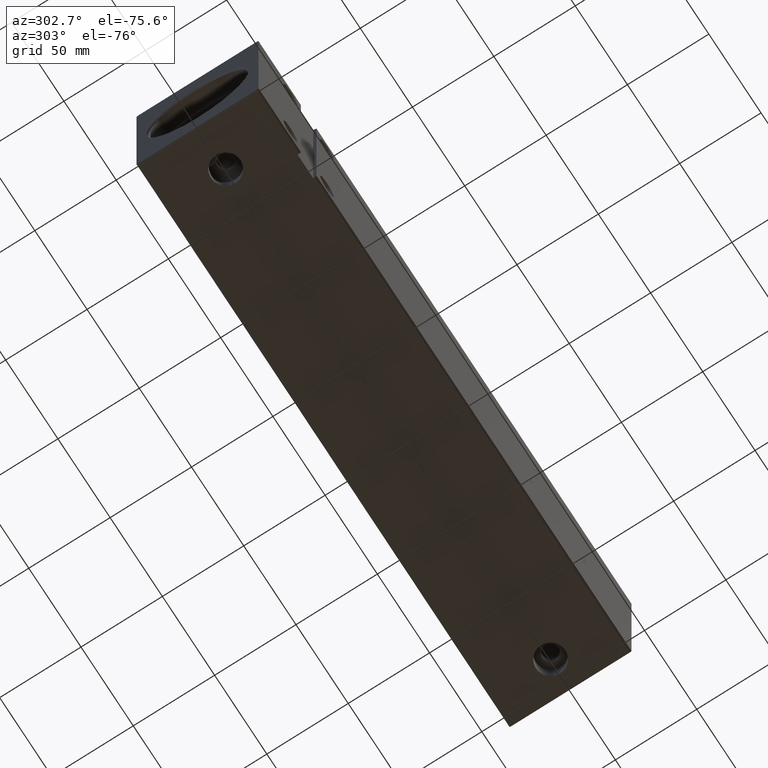
[diagram: clean part render]
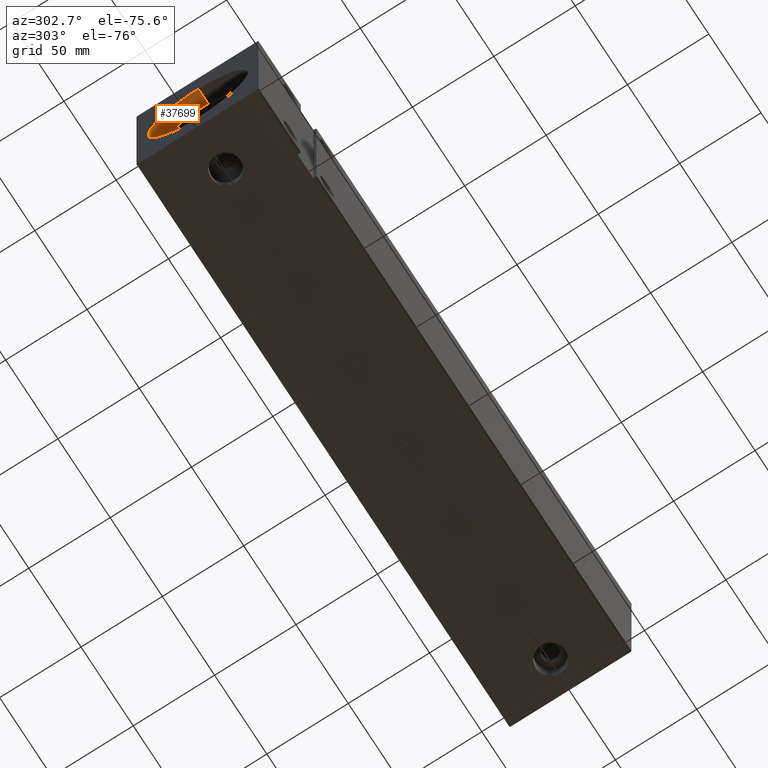
[diagram: same view with one face highlighted and labeled with its STEP entity id]
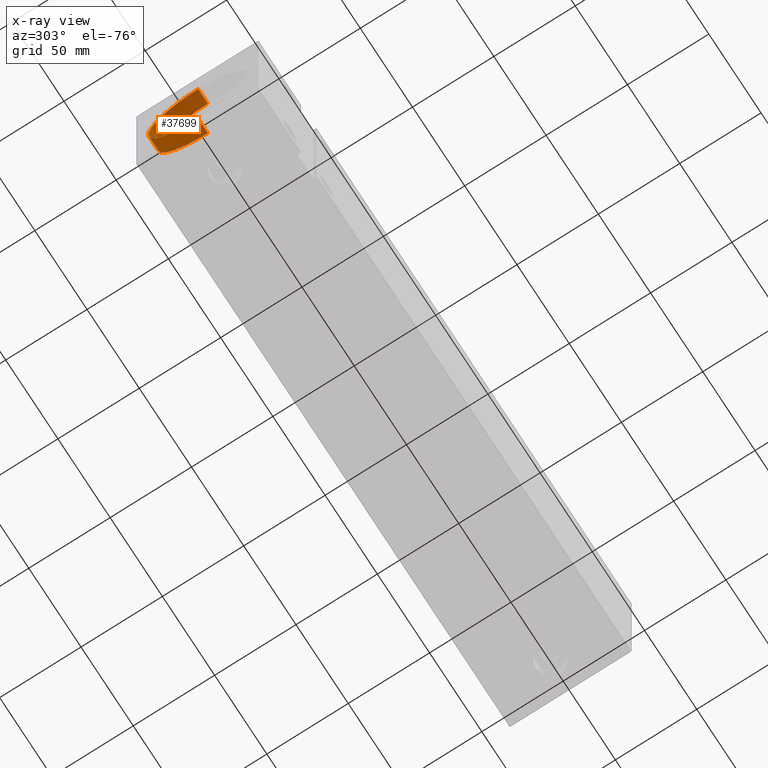
[diagram: x-ray of the same camera — body ghosted, the highlighted face saturated]
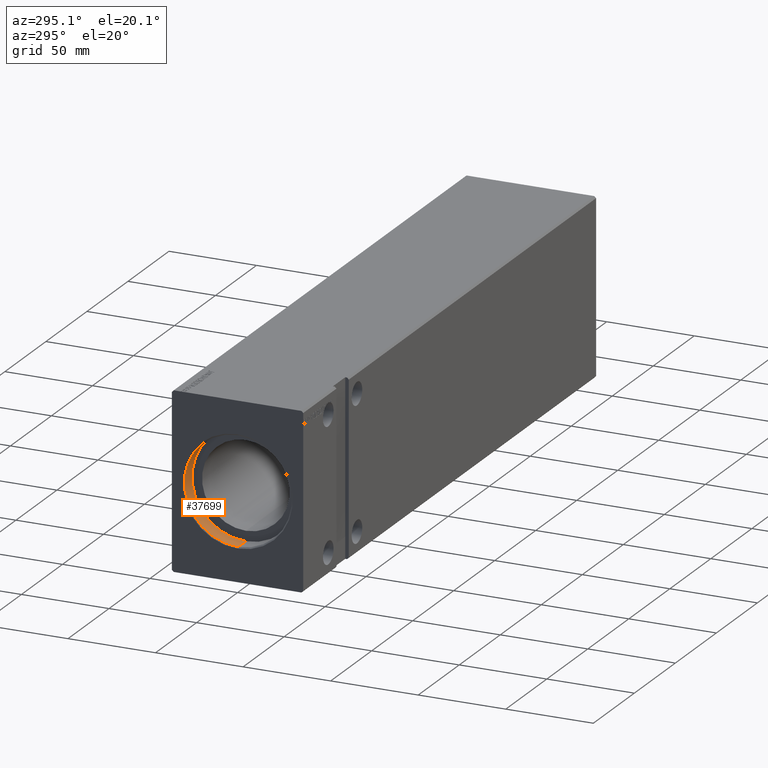
[diagram: same view with one face highlighted and labeled with its STEP entity id]
A machine part, auxiliary view. The second image highlights one B-rep face of the part: STEP entity #37699.
The next image is the same camera in x-ray: the body ghosted, the highlighted face saturated — about 0% of this face is hidden behind the body in this view.
A second angle (auxiliary view) of the same face is appended — the face is thin or edge-on in the first view.
In plain terms, the highlighted cylindrical surface (partial cylindrical patch) has radius 30.75 mm, axis along (-1, -0, -0).
Its self-contained STEP definition (entity closure, byte-faithful):
#228 = CARTESIAN_POINT ( 'NONE',  ( 10.00000000000000000, 3.765788907378111328E-15, -30.75000000000000355 ) ) ;
#1921 = AXIS2_PLACEMENT_3D ( 'NONE', #12306, #25557, #9810 ) ;
#2288 = EDGE_CURVE ( 'NONE', #3573, #33548, #40979, .T. ) ;
#2524 = ORIENTED_EDGE ( 'NONE', *, *, #7406, .T. ) ;
#2824 = AXIS2_PLACEMENT_3D ( 'NONE', #2857, #9066, #21708 ) ;
#2857 = CARTESIAN_POINT ( 'NONE',  ( 10.00000000000000000, 0.000000000000000000, 0.000000000000000000 ) ) ;
#3573 = VERTEX_POINT ( 'NONE', #23492 ) ;
#4646 = DIRECTION ( 'NONE',  ( -1.000000000000000000, -0.000000000000000000, -0.000000000000000000 ) ) ;
#5800 = ORIENTED_EDGE ( 'NONE', *, *, #2288, .T. ) ;
#6938 = VERTEX_POINT ( 'NONE', #39715 ) ;
#7406 = EDGE_CURVE ( 'NONE', #33548, #6938, #40407, .T. ) ;
#9066 = DIRECTION ( 'NONE',  ( -1.000000000000000000, -0.000000000000000000, -0.000000000000000000 ) ) ;
#9810 = DIRECTION ( 'NONE',  ( 0.000000000000000000, 0.000000000000000000, 1.000000000000000000 ) ) ;
#9832 = VECTOR ( 'NONE', #22112, 1000.000000000000000 ) ;
#9948 = AXIS2_PLACEMENT_3D ( 'NONE', #38566, #28827, #9971 ) ;
#9971 = DIRECTION ( 'NONE',  ( 0.000000000000000000, 0.000000000000000000, -1.000000000000000000 ) ) ;
#12306 = CARTESIAN_POINT ( 'NONE',  ( 10.00000000000000000, 0.000000000000000000, 0.000000000000000000 ) ) ;
#17088 = CARTESIAN_POINT ( 'NONE',  ( 10.00000000000000000, 3.765788907378111328E-15, -30.75000000000000355 ) ) ;
#18398 = FACE_OUTER_BOUND ( 'NONE', #19112, .T. ) ;
#18811 = VERTEX_POINT ( 'NONE', #228 ) ;
#19112 = EDGE_LOOP ( 'NONE', ( #36234, #20875, #5800, #2524 ) ) ;
#20444 = CIRCLE ( 'NONE', #1921, 30.75000000000000355 ) ;
#20796 = LINE ( 'NONE', #17088, #27251 ) ;
#20875 = ORIENTED_EDGE ( 'NONE', *, *, #22548, .F. ) ;
#21708 = DIRECTION ( 'NONE',  ( 0.000000000000000000, 0.000000000000000000, 1.000000000000000000 ) ) ;
#21902 = CARTESIAN_POINT ( 'NONE',  ( 0.6999999999999124700, 0.000000000000000000, 30.75000000000000355 ) ) ;
#22112 = DIRECTION ( 'NONE',  ( -1.000000000000000000, -0.000000000000000000, -0.000000000000000000 ) ) ;
#22548 = EDGE_CURVE ( 'NONE', #3573, #18811, #20444, .T. ) ;
#23492 = CARTESIAN_POINT ( 'NONE',  ( 10.00000000000000000, 0.000000000000000000, 30.75000000000000355 ) ) ;
#25557 = DIRECTION ( 'NONE',  ( -1.000000000000000000, 0.000000000000000000, 0.000000000000000000 ) ) ;
#27251 = VECTOR ( 'NONE', #4646, 1000.000000000000000 ) ;
#28827 = DIRECTION ( 'NONE',  ( -1.000000000000000000, 0.000000000000000000, 0.000000000000000000 ) ) ;
#33548 = VERTEX_POINT ( 'NONE', #21902 ) ;
#36234 = ORIENTED_EDGE ( 'NONE', *, *, #40566, .F. ) ;
#37699 = ADVANCED_FACE ( 'NONE', ( #18398 ), #40782, .F. ) ;
#38070 = CARTESIAN_POINT ( 'NONE',  ( 10.00000000000000000, 0.000000000000000000, 30.75000000000000355 ) ) ;
#38566 = CARTESIAN_POINT ( 'NONE',  ( 0.6999999999999124700, 0.000000000000000000, 0.000000000000000000 ) ) ;
#39715 = CARTESIAN_POINT ( 'NONE',  ( 0.6999999999999124700, 3.765788907378111328E-15, -30.75000000000000355 ) ) ;
#40407 = CIRCLE ( 'NONE', #9948, 30.75000000000000355 ) ;
#40566 = EDGE_CURVE ( 'NONE', #18811, #6938, #20796, .T. ) ;
#40782 = CYLINDRICAL_SURFACE ( 'NONE', #2824, 30.75000000000000355 ) ;
#40979 = LINE ( 'NONE', #38070, #9832 ) ;